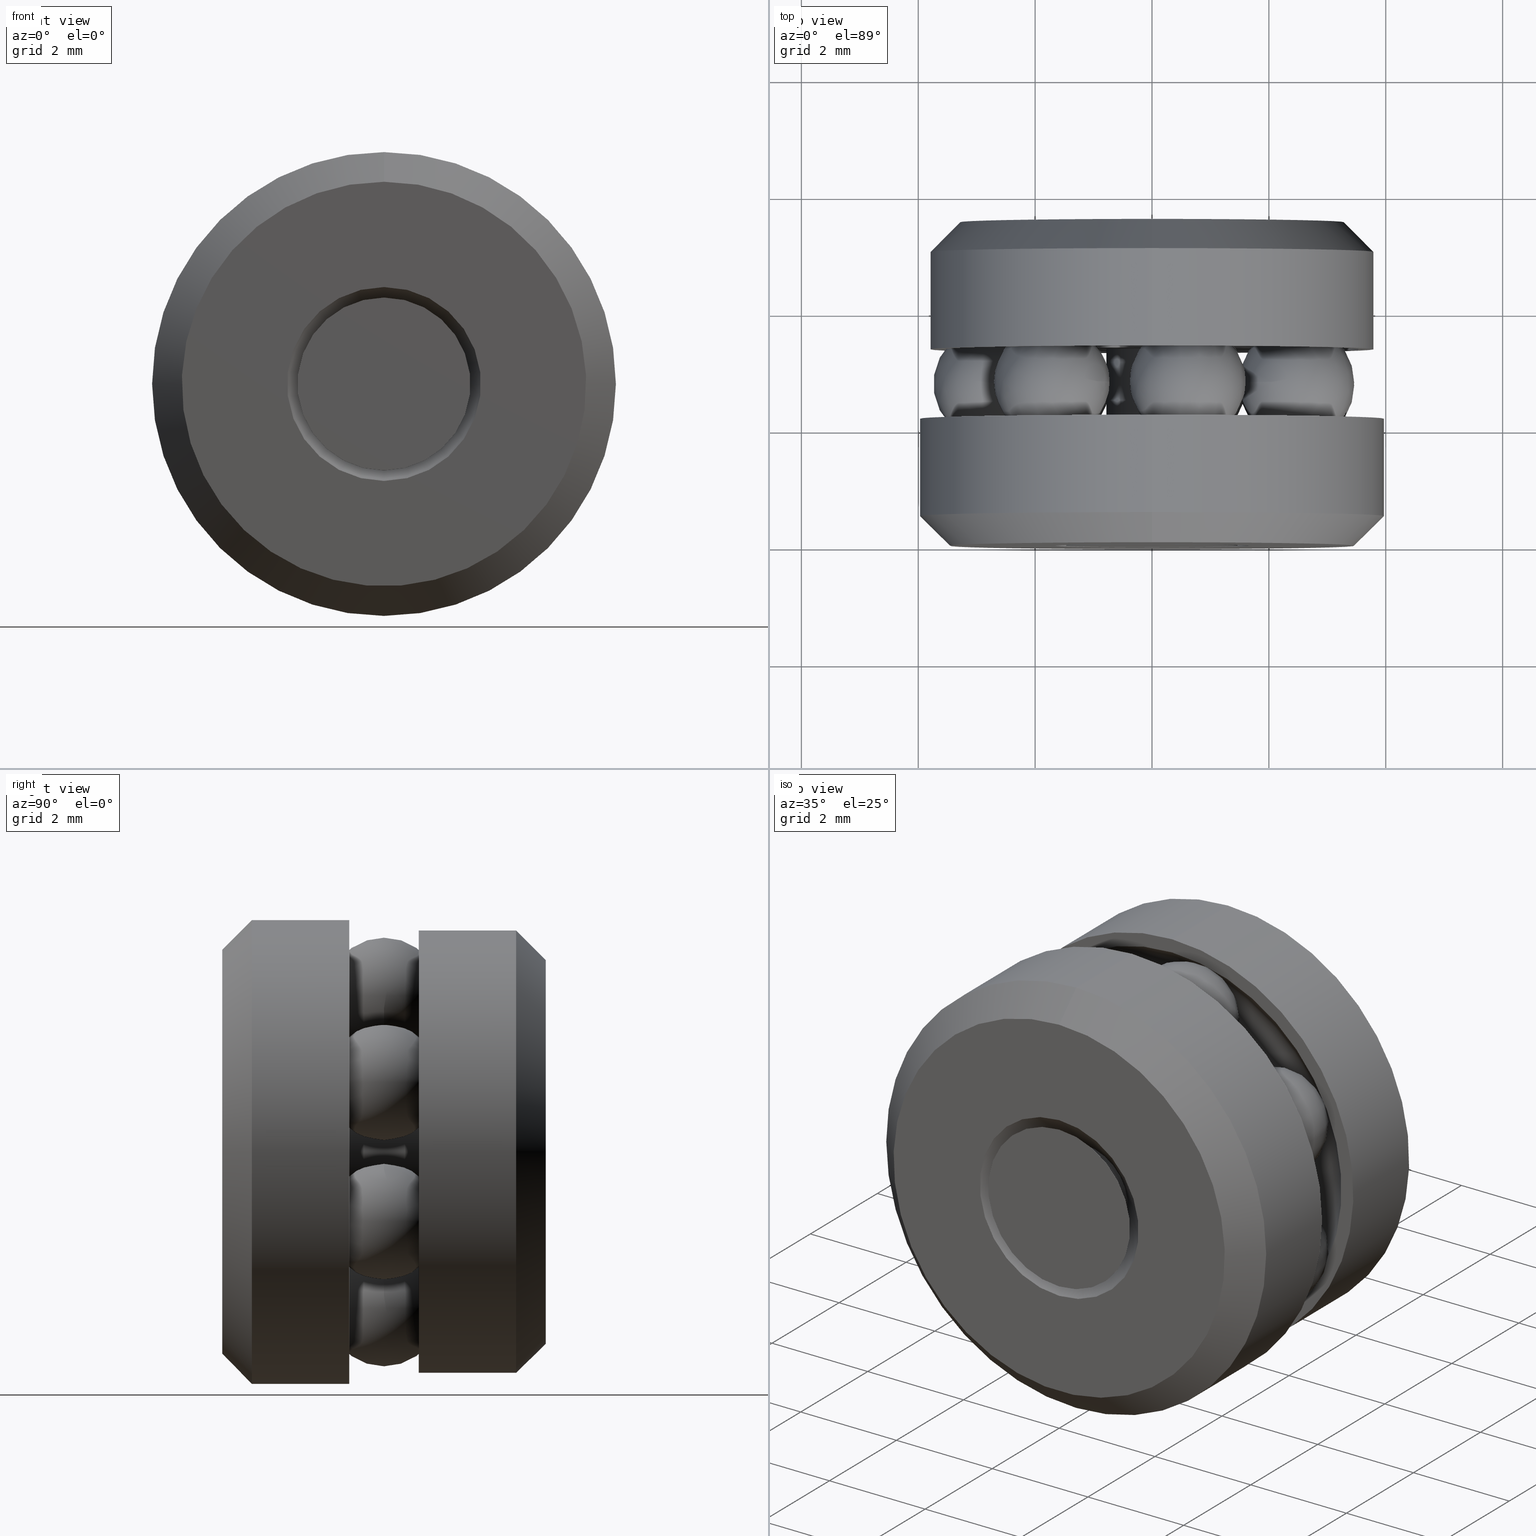
[diagram: canonical four-view strip — front | top / right | iso, engineering-drawing reading convention]
A machine part, canonical four-view strip (front | top / right | iso — engineering-drawing reading convention). The complete STEP part file that produces these views, byte-faithful:
ISO-10303-21;
HEADER;
FILE_DESCRIPTION (( 'STEP AP203' ),
    '1' );
FILE_NAME ('T-114RG_T-114RG-0005.step',
    '2016-02-04T15:34:06',
    ( '' ),
    ( '' ),
    'SwSTEP 2.0',
    'SolidWorks 2016',
    '' );
FILE_SCHEMA (( 'CONFIG_CONTROL_DESIGN' ));
ENDSEC;

DATA;
#1 = CALENDAR_DATE ( 2016, 4, 2 ) ;
#2 = CIRCLE ( 'NONE', #209, 0.07704999999999998000 ) ;
#3 = DIRECTION ( 'NONE',  ( 0.0000000000000000000, 0.0000000000000000000, 1.000000000000000000 ) ) ;
#4 = ADVANCED_FACE ( 'NONE', ( #15, #14 ), #9, .F. ) ;
#5 = CIRCLE ( 'NONE', #241, 0.1362500000000000100 ) ;
#6 = FACE_OUTER_BOUND ( 'NONE', #52, .T. ) ;
#7 = CARTESIAN_POINT ( 'NONE',  ( -0.1562500000000000000, 0.08559999999999998200, 0.0000000000000000000 ) ) ;
#8 =( CONVERSION_BASED_UNIT ( 'INCH', #518 ) LENGTH_UNIT ( ) NAMED_UNIT ( #119 ) );
#9 = TOROIDAL_SURFACE ( 'NONE', #536, 0.1082500000000000000, 0.03900000000000002100 ) ;
#10 = CARTESIAN_POINT ( 'NONE',  ( -0.07704999999999996600, 0.08560000000000002300, 0.0000000000000000000 ) ) ;
#11 = EDGE_CURVE ( 'NONE', #537, #537, #5, .T. ) ;
#12 = PERSON_AND_ORGANIZATION ( #439, #173 ) ;
#13 = DIRECTION ( 'NONE',  ( -0.0000000000000000000, 1.000000000000000000, -0.0000000000000000000 ) ) ;
#14 = FACE_OUTER_BOUND ( 'NONE', #207, .T. ) ;
#15 = FACE_OUTER_BOUND ( 'NONE', #16, .T. ) ;
#16 = EDGE_LOOP ( 'NONE', ( #55 ) ) ;
#17 = ORIENTED_EDGE ( 'NONE', *, *, #11, .F. ) ;
#18 = DIRECTION ( 'NONE',  ( 0.0000000000000000000, 0.0000000000000000000, 1.000000000000000000 ) ) ;
#19 = DIRECTION ( 'NONE',  ( -0.0000000000000000000, 1.000000000000000000, -0.0000000000000000000 ) ) ;
#20 = AXIS2_PLACEMENT_3D ( 'NONE', #98, #373, #508 ) ;
#21 = DATE_AND_TIME ( #484, #196 ) ;
#22 = FACE_OUTER_BOUND ( 'NONE', #80, .T. ) ;
#23 = DIRECTION ( 'NONE',  ( 0.0000000000000000000, 0.0000000000000000000, 1.000000000000000000 ) ) ;
#24 = CARTESIAN_POINT ( 'NONE',  ( 0.0000000000000000000, 0.0000000000000000000, 0.0000000000000000000 ) ) ;
#25 = ORIENTED_EDGE ( 'NONE', *, *, #156, .F. ) ;
#26 = CONICAL_SURFACE ( 'NONE', #421, 0.03100000000000000300, 0.7853981633974426200 ) ;
#27 = CLOSED_SHELL ( 'NONE', ( #358 ) ) ;
#28 = CARTESIAN_POINT ( 'NONE',  ( 0.02408789110077145000, 0.1089999999999999900, 0.1055359464936823100 ) ) ;
#29 = CALENDAR_DATE ( 2016, 4, 2 ) ;
#30 = CIRCLE ( 'NONE', #391, 0.1492499999999999900 ) ;
#31 = EDGE_LOOP ( 'NONE', ( #269 ) ) ;
#32 = PRODUCT_DEFINITION_SHAPE ( 'NONE', 'NONE',  #498 ) ;
#33 = ORIENTED_EDGE ( 'NONE', *, *, #284, .F. ) ;
#34 = EDGE_LOOP ( 'NONE', ( #66 ) ) ;
#35 = CC_DESIGN_APPROVAL ( #520, ( #165 ) ) ;
#36 = AXIS2_PLACEMENT_3D ( 'NONE', #159, #84, #135 ) ;
#37 = DIRECTION ( 'NONE',  ( -0.0000000000000000000, 1.000000000000000000, 0.0000000000000000000 ) ) ;
#38 = ORIENTED_EDGE ( 'NONE', *, *, #224, .F. ) ;
#39 = CIRCLE ( 'NONE', #120, 0.06532106781186515500 ) ;
#40 = PERSON_AND_ORGANIZATION ( #439, #173 ) ;
#41 = PLANE ( 'NONE',  #267 ) ;
#42 = EDGE_LOOP ( 'NONE', ( #51 ) ) ;
#43 = ADVANCED_FACE ( 'NONE', ( #456, #464 ), #26, .T. ) ;
#44 = ORIENTED_EDGE ( 'NONE', *, *, #75, .T. ) ;
#45 = EDGE_LOOP ( 'NONE', ( #145 ) ) ;
#46 = APPROVAL_ROLE ( '' ) ;
#47 = MANIFOLD_SOLID_BREP ( 'BALLS[1]', #186 ) ;
#48 = APPROVAL_PERSON_ORGANIZATION ( #301, #131, #46 ) ;
#49 = AXIS2_PLACEMENT_3D ( 'NONE', #136, #148, #426 ) ;
#50 = ADVANCED_FACE ( 'NONE', ( #242, #481 ), #334, .T. ) ;
#51 = ORIENTED_EDGE ( 'NONE', *, *, #259, .F. ) ;
#52 = EDGE_LOOP ( 'NONE', ( #130 ) ) ;
#53 = CLOSED_SHELL ( 'NONE', ( #244 ) ) ;
#54 = CARTESIAN_POINT ( 'NONE',  ( -0.07704999999999998000, 0.1323999999999999900, 0.0000000000000000000 ) ) ;
#55 = ORIENTED_EDGE ( 'NONE', *, *, #430, .T. ) ;
#56 = DIRECTION ( 'NONE',  ( 0.0000000000000000000, -1.000000000000000000, 0.0000000000000000000 ) ) ;
#57 = CARTESIAN_POINT ( 'NONE',  ( 0.0000000000000000000, 0.02725000000000001000, 0.03100000000000000300 ) ) ;
#58 = SPHERICAL_SURFACE ( 'NONE', #327, 0.03900000000000000000 ) ;
#59 = DIRECTION ( 'NONE',  ( -0.0000000000000000000, 1.000000000000000000, -0.0000000000000000000 ) ) ;
#60 = PERSON_AND_ORGANIZATION ( #439, #173 ) ;
#61 = APPLICATION_CONTEXT ( 'configuration controlled 3d designs of mechanical parts and assemblies' ) ;
#62 = EDGE_CURVE ( 'NONE', #278, #278, #303, .T. ) ;
#63 = MANIFOLD_SOLID_BREP ( 'Revolve2[3]', #231 ) ;
#64 = CIRCLE ( 'NONE', #473, 0.05824999999999974600 ) ;
#65 = ORIENTED_EDGE ( 'NONE', *, *, #344, .F. ) ;
#66 = ORIENTED_EDGE ( 'NONE', *, *, #110, .T. ) ;
#67 = DIRECTION ( 'NONE',  ( -0.0000000000000000000, 1.000000000000000000, -0.0000000000000000000 ) ) ;
#68 = VERTEX_POINT ( 'NONE', #57 ) ;
#69 = COORDINATED_UNIVERSAL_TIME_OFFSET ( 5, 0, .BEHIND. ) ;
#70 = CLOSED_SHELL ( 'NONE', ( #434, #323, #326, #511, #43 ) ) ;
#71 = ORIENTED_EDGE ( 'NONE', *, *, #400, .F. ) ;
#72 = DIRECTION ( 'NONE',  ( 0.0000000000000000000, -1.000000000000000000, 0.0000000000000000000 ) ) ;
#73 = EDGE_LOOP ( 'NONE', ( #170 ) ) ;
#74 = DIRECTION ( 'NONE',  ( 0.0000000000000000000, 0.0000000000000000000, 1.000000000000000000 ) ) ;
#75 = EDGE_CURVE ( 'NONE', #546, #546, #279, .T. ) ;
#76 = CIRCLE ( 'NONE', #429, 0.1562500000000000000 ) ;
#77 = DIRECTION ( 'NONE',  ( -0.0000000000000000000, 1.000000000000000000, -0.0000000000000000000 ) ) ;
#78 = DIRECTION ( 'NONE',  ( 0.6234898018587431400, 0.0000000000000000000, 0.7818314824680221400 ) ) ;
#79 = DIRECTION ( 'NONE',  ( -0.0000000000000000000, 1.000000000000000000, -0.0000000000000000000 ) ) ;
#80 = EDGE_LOOP ( 'NONE', ( #188 ) ) ;
#81 = CLOSED_SHELL ( 'NONE', ( #476 ) ) ;
#82 = CLOSED_SHELL ( 'NONE', ( #395 ) ) ;
#83 = CARTESIAN_POINT ( 'NONE',  ( 0.0000000000000000000, 0.02000000000000018400, 0.1562500000000000000 ) ) ;
#84 = DIRECTION ( 'NONE',  ( -0.0000000000000000000, 1.000000000000000000, -0.0000000000000000000 ) ) ;
#85 = DIRECTION ( 'NONE',  ( -0.9749279121818228400, 0.0000000000000000000, 0.2225209339563182800 ) ) ;
#86 = DIRECTION ( 'NONE',  ( 0.0000000000000000000, 0.0000000000000000000, 1.000000000000000000 ) ) ;
#87 = DIRECTION ( 'NONE',  ( 0.0000000000000000000, 0.0000000000000000000, 1.000000000000000000 ) ) ;
#88 = EDGE_LOOP ( 'NONE', ( #205 ) ) ;
#89 = CARTESIAN_POINT ( 'NONE',  ( 0.0000000000000000000, 0.0000000000000000000, 0.0000000000000000000 ) ) ;
#90 = AXIS2_PLACEMENT_3D ( 'NONE', #54, #72, #526 ) ;
#91 = EDGE_LOOP ( 'NONE', ( #105 ) ) ;
#92 = EDGE_LOOP ( 'NONE', ( #192 ) ) ;
#93 = DIRECTION ( 'NONE',  ( 0.4338837391175651700, -0.0000000000000000000, 0.9009688679024158200 ) ) ;
#94 = MANIFOLD_SOLID_BREP ( 'Revolve2[1]', #70 ) ;
#95 = DIRECTION ( 'NONE',  ( -0.0000000000000000000, 1.000000000000000000, -0.0000000000000000000 ) ) ;
#96 = FACE_BOUND ( 'NONE', #372, .T. ) ;
#97 = VERTEX_POINT ( 'NONE', #423 ) ;
#98 = CARTESIAN_POINT ( 'NONE',  ( 0.0000000000000000000, 0.1089999999999999900, 0.0000000000000000000 ) ) ;
#99 = CLOSED_SHELL ( 'NONE', ( #514, #438, #50, #4, #290, #287, #157, #550 ) ) ;
#100 = PRODUCT_RELATED_PRODUCT_CATEGORY ( 'detail', '', ( #463 ) ) ;
#101 = AXIS2_PLACEMENT_3D ( 'NONE', #504, #125, #446 ) ;
#102 = CARTESIAN_POINT ( 'NONE',  ( 0.0000000000000000000, 0.2179999999999999700, 0.1292500000000001700 ) ) ;
#103 = ORIENTED_EDGE ( 'NONE', *, *, #156, .T. ) ;
#104 = PERSON_AND_ORGANIZATION ( #439, #173 ) ;
#105 = ORIENTED_EDGE ( 'NONE', *, *, #357, .F. ) ;
#106 = ORIENTED_EDGE ( 'NONE', *, *, #62, .F. ) ;
#107 = ORIENTED_EDGE ( 'NONE', *, *, #62, .T. ) ;
#108 = ADVANCED_FACE ( 'NONE', ( #477, #6 ), #387, .F. ) ;
#109 = CC_DESIGN_PERSON_AND_ORGANIZATION_ASSIGNMENT ( #12, #414, ( #498 ) ) ;
#110 = EDGE_CURVE ( 'NONE', #189, #189, #146, .T. ) ;
#111 = DIRECTION ( 'NONE',  ( 0.0000000000000000000, 0.0000000000000000000, 1.000000000000000000 ) ) ;
#112 = EDGE_LOOP ( 'NONE', ( #158 ) ) ;
#113 = EDGE_LOOP ( 'NONE', ( #193 ) ) ;
#114 = EDGE_LOOP ( 'NONE', ( #483 ) ) ;
#115 = PLANE ( 'NONE',  #471 ) ;
#116 = APPROVAL_STATUS ( 'not_yet_approved' ) ;
#117 = FACE_OUTER_BOUND ( 'NONE', #122, .T. ) ;
#118 = CARTESIAN_POINT ( 'NONE',  ( 0.0000000000000000000, 0.08559999999999998200, 0.1562500000000000000 ) ) ;
#119 = DIMENSIONAL_EXPONENTS ( 1.000000000000000000, 0.0000000000000000000, 0.0000000000000000000, 0.0000000000000000000, 0.0000000000000000000, 0.0000000000000000000, 0.0000000000000000000 ) ;
#120 = AXIS2_PLACEMENT_3D ( 'NONE', #227, #527, #297 ) ;
#121 = DIRECTION ( 'NONE',  ( 0.0000000000000000000, 0.0000000000000000000, 1.000000000000000000 ) ) ;
#122 = EDGE_LOOP ( 'NONE', ( #33 ) ) ;
#123 = EDGE_LOOP ( 'NONE', ( #17 ) ) ;
#124 = ORIENTED_EDGE ( 'NONE', *, *, #332, .F. ) ;
#125 = DIRECTION ( 'NONE',  ( -0.4338837391175525700, 0.0000000000000000000, 0.9009688679024219200 ) ) ;
#126 = FACE_BOUND ( 'NONE', #185, .T. ) ;
#127 = FACE_BOUND ( 'NONE', #178, .T. ) ;
#128 = ORIENTED_EDGE ( 'NONE', *, *, #357, .T. ) ;
#129 = CARTESIAN_POINT ( 'NONE',  ( 0.0000000000000000000, 0.2179999999999999700, 0.0000000000000000000 ) ) ;
#130 = ORIENTED_EDGE ( 'NONE', *, *, #466, .F. ) ;
#131 = APPROVAL ( #487, 'UNSPECIFIED' ) ;
#132 = AXIS2_PLACEMENT_3D ( 'NONE', #260, #232, #111 ) ;
#133 = CARTESIAN_POINT ( 'NONE',  ( 0.0000000000000000000, 0.2180000000000000000, 0.0000000000000000000 ) ) ;
#134 = CIRCLE ( 'NONE', #154, 0.1394499999999999900 ) ;
#135 = DIRECTION ( 'NONE',  ( 0.0000000000000000000, 0.0000000000000000000, 1.000000000000000000 ) ) ;
#136 = CARTESIAN_POINT ( 'NONE',  ( 0.0000000000000000000, 0.1979999999999997600, 0.0000000000000000000 ) ) ;
#137 = CLOSED_SHELL ( 'NONE', ( #283 ) ) ;
#138 = EDGE_LOOP ( 'NONE', ( #201 ) ) ;
#139 = EDGE_LOOP ( 'NONE', ( #106 ) ) ;
#140 = CARTESIAN_POINT ( 'NONE',  ( -0.1492499999999999900, 0.1323999999999999900, 0.0000000000000000000 ) ) ;
#141 = FACE_OUTER_BOUND ( 'NONE', #73, .T. ) ;
#142 = DIRECTION ( 'NONE',  ( -0.0000000000000000000, 1.000000000000000000, -0.0000000000000000000 ) ) ;
#143 = ORIENTED_EDGE ( 'NONE', *, *, #110, .F. ) ;
#144 = AXIS2_PLACEMENT_3D ( 'NONE', #294, #187, #204 ) ;
#145 = ORIENTED_EDGE ( 'NONE', *, *, #491, .F. ) ;
#146 = CIRCLE ( 'NONE', #554, 0.03600000000000001100 ) ;
#147 = EDGE_LOOP ( 'NONE', ( #124 ) ) ;
#148 = DIRECTION ( 'NONE',  ( -0.0000000000000000000, 1.000000000000000000, -0.0000000000000000000 ) ) ;
#149 = ADVANCED_FACE ( 'NONE', ( #532, #237 ), #321, .T. ) ;
#150 = FACE_OUTER_BOUND ( 'NONE', #222, .T. ) ;
#151 = DATE_AND_TIME ( #351, #370 ) ;
#152 = ORIENTED_EDGE ( 'NONE', *, *, #466, .T. ) ;
#153 = EDGE_LOOP ( 'NONE', ( #71 ) ) ;
#154 = AXIS2_PLACEMENT_3D ( 'NONE', #364, #540, #412 ) ;
#155 = VERTEX_POINT ( 'NONE', #225 ) ;
#156 = EDGE_CURVE ( 'NONE', #155, #155, #533, .T. ) ;
#157 = ADVANCED_FACE ( 'NONE', ( #424, #214 ), #164, .T. ) ;
#158 = ORIENTED_EDGE ( 'NONE', *, *, #400, .T. ) ;
#159 = CARTESIAN_POINT ( 'NONE',  ( 0.0000000000000000000, 0.2179999999999999700, 0.0000000000000000000 ) ) ;
#160 = EDGE_LOOP ( 'NONE', ( #410 ) ) ;
#161 = EDGE_LOOP ( 'NONE', ( #25 ) ) ;
#162 = EDGE_LOOP ( 'NONE', ( #107 ) ) ;
#163 = CARTESIAN_POINT ( 'NONE',  ( 0.0000000000000000000, 0.02000000000000018400, 0.0000000000000000000 ) ) ;
#164 = CONICAL_SURFACE ( 'NONE', #499, 0.1292500000000001700, 0.7853981633974394000 ) ;
#165 = SECURITY_CLASSIFICATION ( '', '', #522 ) ;
#166 = AXIS2_PLACEMENT_3D ( 'NONE', #347, #389, #291 ) ;
#167 = FACE_BOUND ( 'NONE', #147, .T. ) ;
#168 = CLOSED_SHELL ( 'NONE', ( #252 ) ) ;
#169 = EDGE_LOOP ( 'NONE', ( #276 ) ) ;
#170 = ORIENTED_EDGE ( 'NONE', *, *, #545, .T. ) ;
#171 = DIRECTION ( 'NONE',  ( 0.0000000000000000000, 0.0000000000000000000, 1.000000000000000000 ) ) ;
#172 = DIRECTION ( 'NONE',  ( -0.0000000000000000000, 1.000000000000000000, -0.0000000000000000000 ) ) ;
#173 = ORGANIZATION ( 'UNSPECIFIED', 'UNSPECIFIED', '' ) ;
#174 = VERTEX_POINT ( 'NONE', #558 ) ;
#175 = AXIS2_PLACEMENT_3D ( 'NONE', #495, #544, #74 ) ;
#176 = EDGE_LOOP ( 'NONE', ( #190 ) ) ;
#177 = APPLICATION_PROTOCOL_DEFINITION ( 'international standard', 'config_control_design', 1994, #362 ) ;
#178 = EDGE_LOOP ( 'NONE', ( #152 ) ) ;
#179 = EDGE_LOOP ( 'NONE', ( #306 ) ) ;
#180 = EDGE_LOOP ( 'NONE', ( #450 ) ) ;
#181 = PERSON_AND_ORGANIZATION_ROLE ( 'design_supplier' ) ;
#182 = AXIS2_PLACEMENT_3D ( 'NONE', #458, #394, #121 ) ;
#183 = CONICAL_SURFACE ( 'NONE', #374, 0.06532106781186515500, 0.7853981633974427300 ) ;
#184 = DIRECTION ( 'NONE',  ( 0.0000000000000000000, -1.000000000000000000, 0.0000000000000000000 ) ) ;
#185 = EDGE_LOOP ( 'NONE', ( #208 ) ) ;
#186 = CLOSED_SHELL ( 'NONE', ( #436 ) ) ;
#187 = DIRECTION ( 'NONE',  ( -0.0000000000000000000, 1.000000000000000000, -0.0000000000000000000 ) ) ;
#188 = ORIENTED_EDGE ( 'NONE', *, *, #191, .F. ) ;
#189 = VERTEX_POINT ( 'NONE', #485 ) ;
#190 = ORIENTED_EDGE ( 'NONE', *, *, #200, .F. ) ;
#191 = EDGE_CURVE ( 'NONE', #174, #174, #64, .T. ) ;
#192 = ORIENTED_EDGE ( 'NONE', *, *, #75, .F. ) ;
#193 = ORIENTED_EDGE ( 'NONE', *, *, #304, .T. ) ;
#194 = EDGE_LOOP ( 'NONE', ( #509 ) ) ;
#195 = DATE_AND_TIME ( #212, #480 ) ;
#196 = LOCAL_TIME ( 10, 34, 6.000000000000000000, #427 ) ;
#197 = CARTESIAN_POINT ( 'NONE',  ( 0.0000000000000000000, 0.02725000000000001000, 0.0000000000000000000 ) ) ;
#198 = AXIS2_PLACEMENT_3D ( 'NONE', #133, #489, #510 ) ;
#199 = DIRECTION ( 'NONE',  ( -0.0000000000000000000, 1.000000000000000000, -0.0000000000000000000 ) ) ;
#200 = EDGE_CURVE ( 'NONE', #432, #432, #551, .T. ) ;
#201 = ORIENTED_EDGE ( 'NONE', *, *, #304, .F. ) ;
#202 = DIRECTION ( 'NONE',  ( 0.0000000000000000000, 0.0000000000000000000, 1.000000000000000000 ) ) ;
#203 = CIRCLE ( 'NONE', #479, 0.03100000000000000300 ) ;
#204 = DIRECTION ( 'NONE',  ( 0.0000000000000000000, 0.0000000000000000000, 1.000000000000000000 ) ) ;
#205 = ORIENTED_EDGE ( 'NONE', *, *, #545, .F. ) ;
#206 = EDGE_LOOP ( 'NONE', ( #38 ) ) ;
#207 = EDGE_LOOP ( 'NONE', ( #65 ) ) ;
#208 = ORIENTED_EDGE ( 'NONE', *, *, #11, .T. ) ;
#209 = AXIS2_PLACEMENT_3D ( 'NONE', #488, #461, #18 ) ;
#210 = CC_DESIGN_PERSON_AND_ORGANIZATION_ASSIGNMENT ( #415, #181, ( #281 ) ) ;
#211 = VERTEX_POINT ( 'NONE', #365 ) ;
#212 = CALENDAR_DATE ( 2016, 4, 2 ) ;
#213 = DIRECTION ( 'NONE',  ( 0.7818314824680221400, 0.0000000000000000000, -0.6234898018587431400 ) ) ;
#214 = FACE_BOUND ( 'NONE', #92, .T. ) ;
#215 = EDGE_LOOP ( 'NONE', ( #44 ) ) ;
#216 = CARTESIAN_POINT ( 'NONE',  ( 0.0000000000000000000, -1.293516365760028200E-017, 0.1362500000000000100 ) ) ;
#217 = DIRECTION ( 'NONE',  ( 1.000000000000000000, 0.0000000000000000000, 0.0000000000000000000 ) ) ;
#218 = DIRECTION ( 'NONE',  ( -0.0000000000000000000, 1.000000000000000000, -0.0000000000000000000 ) ) ;
#219 = CONICAL_SURFACE ( 'NONE', #440, 0.03600000000000003200, 0.7853981633974432800 ) ;
#220 = CARTESIAN_POINT ( 'NONE',  ( 0.0000000000000000000, 0.02932106781186547700, 0.0000000000000000000 ) ) ;
#221 = EDGE_LOOP ( 'NONE', ( #548 ) ) ;
#222 = EDGE_LOOP ( 'NONE', ( #470 ) ) ;
#223 = EDGE_LOOP ( 'NONE', ( #103 ) ) ;
#224 = EDGE_CURVE ( 'NONE', #459, #459, #288, .T. ) ;
#225 = CARTESIAN_POINT ( 'NONE',  ( 0.0000000000000000000, 0.1323999999999999900, 0.03600000000000002500 ) ) ;
#226 = VERTEX_POINT ( 'NONE', #83 ) ;
#227 = CARTESIAN_POINT ( 'NONE',  ( 0.0000000000000000000, -5.474608238652862700E-019, 0.0000000000000000000 ) ) ;
#228 = VERTEX_POINT ( 'NONE', #555 ) ;
#229 = PLANE ( 'NONE',  #182 ) ;
#230 = APPROVAL_ROLE ( '' ) ;
#231 = CLOSED_SHELL ( 'NONE', ( #251, #328, #547, #539, #108, #149, #360, #478 ) ) ;
#232 = DIRECTION ( 'NONE',  ( -0.0000000000000000000, 1.000000000000000000, -0.0000000000000000000 ) ) ;
#233 = AXIS2_PLACEMENT_3D ( 'NONE', #140, #56, #422 ) ;
#234 = DIRECTION ( 'NONE',  ( 0.0000000000000000000, 0.0000000000000000000, -1.000000000000000000 ) ) ;
#235 = CYLINDRICAL_SURFACE ( 'NONE', #399, 0.03100000000000001700 ) ;
#236 = MANIFOLD_SOLID_BREP ( 'BALLS[6]', #137 ) ;
#237 = FACE_BOUND ( 'NONE', #556, .T. ) ;
#238 =( GEOMETRIC_REPRESENTATION_CONTEXT ( 3 ) GLOBAL_UNCERTAINTY_ASSIGNED_CONTEXT ( ( #457 ) ) GLOBAL_UNIT_ASSIGNED_CONTEXT ( ( #8, #263, #418 ) ) REPRESENTATION_CONTEXT ( 'NONE', 'WORKASPACE' ) );
#239 = SPHERICAL_SURFACE ( 'NONE', #101, 0.03900000000000000000 ) ;
#240 = CARTESIAN_POINT ( 'NONE',  ( 0.0000000000000000000, 0.1323999999999999900, 0.1492499999999999900 ) ) ;
#241 = AXIS2_PLACEMENT_3D ( 'NONE', #247, #513, #3 ) ;
#242 = FACE_BOUND ( 'NONE', #223, .T. ) ;
#243 = DATE_TIME_ROLE ( 'creation_date' ) ;
#244 = ADVANCED_FACE ( 'NONE', ( ), #266, .T. ) ;
#245 = CONICAL_SURFACE ( 'NONE', #198, 0.05824999999999974600, 0.7853981633974431700 ) ;
#246 = CARTESIAN_POINT ( 'NONE',  ( 0.02408789110077002100, 0.1089999999999999900, -0.1055359464936826300 ) ) ;
#247 = CARTESIAN_POINT ( 'NONE',  ( 0.0000000000000000000, -1.293516365760028200E-017, 0.0000000000000000000 ) ) ;
#248 = AXIS2_PLACEMENT_3D ( 'NONE', #345, #376, #417 ) ;
#249 = ORIENTED_EDGE ( 'NONE', *, *, #332, .T. ) ;
#250 = DIRECTION ( 'NONE',  ( 0.0000000000000000000, 0.0000000000000000000, 1.000000000000000000 ) ) ;
#251 = ADVANCED_FACE ( 'NONE', ( #416, #117 ), #316, .T. ) ;
#252 = ADVANCED_FACE ( 'NONE', ( ), #552, .T. ) ;
#253 = LOCAL_TIME ( 10, 34, 6.000000000000000000, #69 ) ;
#254 = LOCAL_TIME ( 10, 34, 6.000000000000000000, #469 ) ;
#255 = DIRECTION ( 'NONE',  ( -0.0000000000000000000, 1.000000000000000000, -0.0000000000000000000 ) ) ;
#256 = CARTESIAN_POINT ( 'NONE',  ( 0.0000000000000000000, 0.1323999999999999900, 0.07704999999999998000 ) ) ;
#257 = CARTESIAN_POINT ( 'NONE',  ( 0.0000000000000000000, 0.2180000000000000000, 0.06532106781186519700 ) ) ;
#258 = CARTESIAN_POINT ( 'NONE',  ( 0.0000000000000000000, 0.0000000000000000000, 0.0000000000000000000 ) ) ;
#259 = EDGE_CURVE ( 'NONE', #384, #384, #30, .T. ) ;
#260 = CARTESIAN_POINT ( 'NONE',  ( 0.0000000000000000000, 0.1907500000000000000, 0.0000000000000000000 ) ) ;
#261 = DIRECTION ( 'NONE',  ( -0.0000000000000000000, 1.000000000000000000, -0.0000000000000000000 ) ) ;
#262 = FACE_OUTER_BOUND ( 'NONE', #114, .T. ) ;
#263 =( NAMED_UNIT ( * ) PLANE_ANGLE_UNIT ( ) SI_UNIT ( $, .RADIAN. ) );
#264 = DATE_TIME_ROLE ( 'classification_date' ) ;
#265 = CARTESIAN_POINT ( 'NONE',  ( 0.0000000000000000000, 0.08560000000000000900, 0.0000000000000000000 ) ) ;
#266 = SPHERICAL_SURFACE ( 'NONE', #420, 0.03900000000000000000 ) ;
#267 = AXIS2_PLACEMENT_3D ( 'NONE', #285, #534, #273 ) ;
#268 = MANIFOLD_SOLID_BREP ( 'Revolve3', #53 ) ;
#269 = ORIENTED_EDGE ( 'NONE', *, *, #344, .T. ) ;
#270 = DIRECTION ( 'NONE',  ( 0.0000000000000000000, 0.0000000000000000000, 1.000000000000000000 ) ) ;
#271 = APPROVAL_DATE_TIME ( #151, #131 ) ;
#272 = APPROVAL_PERSON_ORGANIZATION ( #60, #317, #230 ) ;
#273 = DIRECTION ( 'NONE',  ( 0.0000000000000000000, -0.0000000000000000000, -1.000000000000000000 ) ) ;
#274 = CARTESIAN_POINT ( 'NONE',  ( 0.09752987995043649300, 0.1089999999999999900, -0.04696791475947643300 ) ) ;
#275 = EDGE_LOOP ( 'NONE', ( #249 ) ) ;
#276 = ORIENTED_EDGE ( 'NONE', *, *, #512, .T. ) ;
#277 = APPROVAL_DATE_TIME ( #195, #520 ) ;
#278 = VERTEX_POINT ( 'NONE', #377 ) ;
#279 = CIRCLE ( 'NONE', #36, 0.1292500000000001700 ) ;
#280 = PERSON_AND_ORGANIZATION ( #439, #173 ) ;
#281 = PRODUCT_DEFINITION_FORMATION_WITH_SPECIFIED_SOURCE ( 'ANY', '', #463, .NOT_KNOWN. ) ;
#282 = AXIS2_PLACEMENT_3D ( 'NONE', #413, #425, #202 ) ;
#283 = ADVANCED_FACE ( 'NONE', ( ), #58, .T. ) ;
#284 = EDGE_CURVE ( 'NONE', #524, #524, #296, .T. ) ;
#285 = CARTESIAN_POINT ( 'NONE',  ( -0.05824999999999970500, 0.0000000000000000000, 0.0000000000000000000 ) ) ;
#286 = CARTESIAN_POINT ( 'NONE',  ( 0.0000000000000000000, 0.1323999999999999900, 0.0000000000000000000 ) ) ;
#287 = ADVANCED_FACE ( 'NONE', ( #455, #380 ), #379, .T. ) ;
#288 = CIRCLE ( 'NONE', #444, 0.07704999999999996600 ) ;
#289 = DIRECTION ( 'NONE',  ( 0.0000000000000000000, -1.000000000000000000, 0.0000000000000000000 ) ) ;
#290 = ADVANCED_FACE ( 'NONE', ( #500, #341 ), #409, .T. ) ;
#291 = DIRECTION ( 'NONE',  ( 0.0000000000000000000, 0.0000000000000000000, 1.000000000000000000 ) ) ;
#292 = CARTESIAN_POINT ( 'NONE',  ( 0.0000000000000000000, 0.1907500000000000000, 0.03100000000000003400 ) ) ;
#293 = CC_DESIGN_DATE_AND_TIME_ASSIGNMENT ( #21, #243, ( #498 ) ) ;
#294 = CARTESIAN_POINT ( 'NONE',  ( 0.0000000000000000000, 0.1323999999999999900, 0.0000000000000000000 ) ) ;
#295 = FACE_OUTER_BOUND ( 'NONE', #206, .T. ) ;
#296 = CIRCLE ( 'NONE', #343, 0.1562500000000000000 ) ;
#297 = DIRECTION ( 'NONE',  ( 0.0000000000000000000, 0.0000000000000000000, 1.000000000000000000 ) ) ;
#298 = CARTESIAN_POINT ( 'NONE',  ( 0.0000000000000000000, 0.1323999999999999900, 0.0000000000000000000 ) ) ;
#299 = DIRECTION ( 'NONE',  ( 0.9749279121818256200, -0.0000000000000000000, 0.2225209339563050400 ) ) ;
#300 = DIRECTION ( 'NONE',  ( 0.0000000000000000000, 0.0000000000000000000, 1.000000000000000000 ) ) ;
#301 = PERSON_AND_ORGANIZATION ( #439, #173 ) ;
#302 = FACE_OUTER_BOUND ( 'NONE', #275, .T. ) ;
#303 = CIRCLE ( 'NONE', #49, 0.1492499999999999900 ) ;
#304 = EDGE_CURVE ( 'NONE', #346, #346, #369, .T. ) ;
#305 = DIRECTION ( 'NONE',  ( 0.0000000000000000000, 0.0000000000000000000, 1.000000000000000000 ) ) ;
#306 = ORIENTED_EDGE ( 'NONE', *, *, #512, .F. ) ;
#307 = PERSON_AND_ORGANIZATION ( #439, #173 ) ;
#308 = CARTESIAN_POINT ( 'NONE',  ( 0.0000000000000000000, 0.1089999999999999900, 0.0000000000000000000 ) ) ;
#309 = DIRECTION ( 'NONE',  ( -0.0000000000000000000, 1.000000000000000000, -0.0000000000000000000 ) ) ;
#310 = VERTEX_POINT ( 'NONE', #482 ) ;
#311 = SPHERICAL_SURFACE ( 'NONE', #538, 0.03900000000000000000 ) ;
#312 = DIRECTION ( 'NONE',  ( 0.0000000000000000000, 0.0000000000000000000, 1.000000000000000000 ) ) ;
#313 = ORIENTED_EDGE ( 'NONE', *, *, #430, .F. ) ;
#314 = AXIS2_PLACEMENT_3D ( 'NONE', #352, #184, #411 ) ;
#315 = CARTESIAN_POINT ( 'NONE',  ( 0.0000000000000000000, 0.0000000000000000000, 0.05824999999999970500 ) ) ;
#316 = CYLINDRICAL_SURFACE ( 'NONE', #354, 0.1562500000000000000 ) ;
#317 = APPROVAL ( #116, 'UNSPECIFIED' ) ;
#318 = FACE_BOUND ( 'NONE', #138, .T. ) ;
#319 = PERSON_AND_ORGANIZATION_ROLE ( 'creator' ) ;
#320 = DIRECTION ( 'NONE',  ( 0.0000000000000000000, 0.0000000000000000000, 1.000000000000000000 ) ) ;
#321 = PLANE ( 'NONE',  #505 ) ;
#322 = CARTESIAN_POINT ( 'NONE',  ( 0.0000000000000000000, 0.0000000000000000000, 0.0000000000000000000 ) ) ;
#323 = ADVANCED_FACE ( 'NONE', ( #150 ), #229, .T. ) ;
#324 = VERTEX_POINT ( 'NONE', #515 ) ;
#325 = MANIFOLD_SOLID_BREP ( 'BALLS[4]', #168 ) ;
#326 = ADVANCED_FACE ( 'NONE', ( #96, #22 ), #245, .T. ) ;
#327 = AXIS2_PLACEMENT_3D ( 'NONE', #442, #213, #78 ) ;
#328 = ADVANCED_FACE ( 'NONE', ( #126, #468 ), #375, .T. ) ;
#329 = FACE_OUTER_BOUND ( 'NONE', #161, .T. ) ;
#330 =( LENGTH_UNIT ( ) NAMED_UNIT ( * ) SI_UNIT ( $, .METRE. ) );
#331 = PLANE ( 'NONE',  #175 ) ;
#332 = EDGE_CURVE ( 'NONE', #97, #97, #134, .T. ) ;
#333 = APPROVAL_ROLE ( '' ) ;
#334 = PLANE ( 'NONE',  #90 ) ;
#335 = CARTESIAN_POINT ( 'NONE',  ( 0.0000000000000000000, 0.1886789321881345600, 0.0000000000000000000 ) ) ;
#336 = DATE_AND_TIME ( #1, #253 ) ;
#337 = DIRECTION ( 'NONE',  ( -0.0000000000000000000, 1.000000000000000000, -0.0000000000000000000 ) ) ;
#338 = CARTESIAN_POINT ( 'NONE',  ( 0.0000000000000000000, 0.1886789321881345600, 0.0000000000000000000 ) ) ;
#339 = PERSON_AND_ORGANIZATION_ROLE ( 'classification_officer' ) ;
#340 = DIRECTION ( 'NONE',  ( 1.000000000000000000, 0.0000000000000000000, 0.0000000000000000000 ) ) ;
#341 = FACE_OUTER_BOUND ( 'NONE', #42, .T. ) ;
#342 = CC_DESIGN_PERSON_AND_ORGANIZATION_ASSIGNMENT ( #40, #319, ( #281 ) ) ;
#343 = AXIS2_PLACEMENT_3D ( 'NONE', #448, #255, #86 ) ;
#344 = EDGE_CURVE ( 'NONE', #228, #228, #393, .T. ) ;
#345 = CARTESIAN_POINT ( 'NONE',  ( 0.0000000000000000000, 0.0000000000000000000, 0.0000000000000000000 ) ) ;
#346 = VERTEX_POINT ( 'NONE', #257 ) ;
#347 = CARTESIAN_POINT ( 'NONE',  ( 0.0000000000000000000, 0.02000000000000018400, 0.0000000000000000000 ) ) ;
#348 = DIRECTION ( 'NONE',  ( -0.9009688679024158200, 0.0000000000000000000, 0.4338837391175651700 ) ) ;
#349 = DIRECTION ( 'NONE',  ( 0.0000000000000000000, 0.0000000000000000000, 1.000000000000000000 ) ) ;
#350 = DATE_AND_TIME ( #29, #254 ) ;
#351 = CALENDAR_DATE ( 2016, 4, 2 ) ;
#352 = CARTESIAN_POINT ( 'NONE',  ( -0.06532106781186515500, -6.741312240732783600E-018, 0.0000000000000000000 ) ) ;
#353 = MANIFOLD_SOLID_BREP ( 'BALLS[3]', #27 ) ;
#354 = AXIS2_PLACEMENT_3D ( 'NONE', #89, #309, #250 ) ;
#355 = FACE_BOUND ( 'NONE', #112, .T. ) ;
#356 = CARTESIAN_POINT ( 'NONE',  ( 0.0000000000000000000, -5.474608238652862700E-019, 0.0000000000000000000 ) ) ;
#357 = EDGE_CURVE ( 'NONE', #497, #497, #474, .T. ) ;
#358 = ADVANCED_FACE ( 'NONE', ( ), #239, .T. ) ;
#359 = TOROIDAL_SURFACE ( 'NONE', #20, 0.1082500000000000000, 0.03900000000000000700 ) ;
#360 = ADVANCED_FACE ( 'NONE', ( #302, #295 ), #359, .F. ) ;
#361 = SPHERICAL_SURFACE ( 'NONE', #549, 0.03900000000000000000 ) ;
#362 = APPLICATION_CONTEXT ( 'configuration controlled 3d designs of mechanical parts and assemblies' ) ;
#363 = AXIS2_PLACEMENT_3D ( 'NONE', #338, #79, #320 ) ;
#364 = CARTESIAN_POINT ( 'NONE',  ( 0.0000000000000000000, 0.08559999999999998200, 0.0000000000000000000 ) ) ;
#365 = CARTESIAN_POINT ( 'NONE',  ( 0.0000000000000000000, 0.1886789321881345600, 0.03600000000000003200 ) ) ;
#366 = CC_DESIGN_APPROVAL ( #317, ( #498 ) ) ;
#367 = DIRECTION ( 'NONE',  ( 0.0000000000000000000, -1.000000000000000000, 0.0000000000000000000 ) ) ;
#368 = MANIFOLD_SOLID_BREP ( 'BALLS[5]', #81 ) ;
#369 = CIRCLE ( 'NONE', #282, 0.06532106781186519700 ) ;
#370 = LOCAL_TIME ( 10, 34, 6.000000000000000000, #396 ) ;
#371 = DIRECTION ( 'NONE',  ( -0.2225209339563050400, 0.0000000000000000000, 0.9749279121818256200 ) ) ;
#372 = EDGE_LOOP ( 'NONE', ( #128 ) ) ;
#373 = DIRECTION ( 'NONE',  ( -0.0000000000000000000, 1.000000000000000000, -0.0000000000000000000 ) ) ;
#374 = AXIS2_PLACEMENT_3D ( 'NONE', #356, #367, #433 ) ;
#375 = CONICAL_SURFACE ( 'NONE', #166, 0.1562500000000000000, 0.7853981633974431700 ) ;
#376 = DIRECTION ( 'NONE',  ( -0.0000000000000000000, 1.000000000000000000, -0.0000000000000000000 ) ) ;
#377 = CARTESIAN_POINT ( 'NONE',  ( 0.0000000000000000000, 0.1979999999999997600, 0.1492499999999999900 ) ) ;
#378 = DIRECTION ( 'NONE',  ( -0.0000000000000000000, 1.000000000000000000, -0.0000000000000000000 ) ) ;
#379 = CYLINDRICAL_SURFACE ( 'NONE', #248, 0.1492499999999999900 ) ;
#380 = FACE_OUTER_BOUND ( 'NONE', #139, .T. ) ;
#381 = DIRECTION ( 'NONE',  ( 0.0000000000000000000, 0.0000000000000000000, 1.000000000000000000 ) ) ;
#382 = DIRECTION ( 'NONE',  ( 0.0000000000000000000, 0.0000000000000000000, 1.000000000000000000 ) ) ;
#383 = DIRECTION ( 'NONE',  ( 0.0000000000000000000, 0.0000000000000000000, 1.000000000000000000 ) ) ;
#384 = VERTEX_POINT ( 'NONE', #240 ) ;
#385 = COORDINATED_UNIVERSAL_TIME_OFFSET ( 5, 0, .BEHIND. ) ;
#386 = DIRECTION ( 'NONE',  ( 0.0000000000000000000, 0.0000000000000000000, 1.000000000000000000 ) ) ;
#387 = CYLINDRICAL_SURFACE ( 'NONE', #543, 0.03600000000000001100 ) ;
#388 = DIRECTION ( 'NONE',  ( 0.0000000000000000000, 0.0000000000000000000, 1.000000000000000000 ) ) ;
#389 = DIRECTION ( 'NONE',  ( -0.0000000000000000000, 1.000000000000000000, -0.0000000000000000000 ) ) ;
#390 = CC_DESIGN_DATE_AND_TIME_ASSIGNMENT ( #336, #264, ( #165 ) ) ;
#391 = AXIS2_PLACEMENT_3D ( 'NONE', #298, #261, #386 ) ;
#392 = CIRCLE ( 'NONE', #363, 0.03600000000000003200 ) ;
#393 = CIRCLE ( 'NONE', #144, 0.1394500000000000200 ) ;
#394 = DIRECTION ( 'NONE',  ( -0.0000000000000000000, 1.000000000000000000, 0.0000000000000000000 ) ) ;
#395 = ADVANCED_FACE ( 'NONE', ( ), #361, .T. ) ;
#396 = COORDINATED_UNIVERSAL_TIME_OFFSET ( 5, 0, .BEHIND. ) ;
#397 = DIRECTION ( 'NONE',  ( 0.0000000000000000000, 0.0000000000000000000, -1.000000000000000000 ) ) ;
#398 = APPROVAL_DATE_TIME ( #350, #317 ) ;
#399 = AXIS2_PLACEMENT_3D ( 'NONE', #322, #218, #388 ) ;
#400 = EDGE_CURVE ( 'NONE', #324, #324, #39, .T. ) ;
#401 = MECHANICAL_CONTEXT ( 'NONE', #362, 'mechanical' ) ;
#402 = DIRECTION ( 'NONE',  ( 0.0000000000000000000, 0.0000000000000000000, 1.000000000000000000 ) ) ;
#403 = CARTESIAN_POINT ( 'NONE',  ( 0.0000000000000000000, 0.0000000000000000000, 0.0000000000000000000 ) ) ;
#404 = VERTEX_POINT ( 'NONE', #256 ) ;
#405 = APPROVAL_PERSON_ORGANIZATION ( #104, #520, #333 ) ;
#406 = DIRECTION ( 'NONE',  ( 0.0000000000000000000, -1.000000000000000000, 0.0000000000000000000 ) ) ;
#407 = FACE_OUTER_BOUND ( 'NONE', #153, .T. ) ;
#408 = APPROVAL_STATUS ( 'not_yet_approved' ) ;
#409 = PLANE ( 'NONE',  #233 ) ;
#410 = ORIENTED_EDGE ( 'NONE', *, *, #259, .T. ) ;
#411 = DIRECTION ( 'NONE',  ( 0.0000000000000000000, -0.0000000000000000000, -1.000000000000000000 ) ) ;
#412 = DIRECTION ( 'NONE',  ( 0.0000000000000000000, 0.0000000000000000000, 1.000000000000000000 ) ) ;
#413 = CARTESIAN_POINT ( 'NONE',  ( 0.0000000000000000000, 0.2180000000000000000, 0.0000000000000000000 ) ) ;
#414 = PERSON_AND_ORGANIZATION_ROLE ( 'creator' ) ;
#415 = PERSON_AND_ORGANIZATION ( #439, #173 ) ;
#416 = FACE_OUTER_BOUND ( 'NONE', #169, .T. ) ;
#417 = DIRECTION ( 'NONE',  ( 0.0000000000000000000, 0.0000000000000000000, 1.000000000000000000 ) ) ;
#418 =( NAMED_UNIT ( * ) SI_UNIT ( $, .STERADIAN. ) SOLID_ANGLE_UNIT ( ) );
#419 = CC_DESIGN_PERSON_AND_ORGANIZATION_ASSIGNMENT ( #280, #451, ( #463 ) ) ;
#420 = AXIS2_PLACEMENT_3D ( 'NONE', #530, #397, #340 ) ;
#421 = AXIS2_PLACEMENT_3D ( 'NONE', #447, #289, #234 ) ;
#422 = DIRECTION ( 'NONE',  ( 0.0000000000000000000, -0.0000000000000000000, -1.000000000000000000 ) ) ;
#423 = CARTESIAN_POINT ( 'NONE',  ( 0.0000000000000000000, 0.08559999999999998200, 0.1394499999999999900 ) ) ;
#424 = FACE_OUTER_BOUND ( 'NONE', #162, .T. ) ;
#425 = DIRECTION ( 'NONE',  ( -0.0000000000000000000, 1.000000000000000000, -0.0000000000000000000 ) ) ;
#426 = DIRECTION ( 'NONE',  ( 0.0000000000000000000, 0.0000000000000000000, 1.000000000000000000 ) ) ;
#427 = COORDINATED_UNIVERSAL_TIME_OFFSET ( 5, 0, .BEHIND. ) ;
#428 = DESIGN_CONTEXT ( 'detailed design', #61, 'design' ) ;
#429 = AXIS2_PLACEMENT_3D ( 'NONE', #163, #77, #467 ) ;
#430 = EDGE_CURVE ( 'NONE', #404, #404, #2, .T. ) ;
#431 = FACE_OUTER_BOUND ( 'NONE', #215, .T. ) ;
#432 = VERTEX_POINT ( 'NONE', #315 ) ;
#433 = DIRECTION ( 'NONE',  ( 0.0000000000000000000, 0.0000000000000000000, -1.000000000000000000 ) ) ;
#434 = ADVANCED_FACE ( 'NONE', ( #507 ), #41, .T. ) ;
#435 = AXIS2_PLACEMENT_3D ( 'NONE', #274, #93, #348 ) ;
#436 = ADVANCED_FACE ( 'NONE', ( ), #311, .T. ) ;
#437 = DIRECTION ( 'NONE',  ( -0.0000000000000000000, 1.000000000000000000, -0.0000000000000000000 ) ) ;
#438 = ADVANCED_FACE ( 'NONE', ( #141, #329 ), #454, .F. ) ;
#439 = PERSON ( 'UNSPECIFIED', 'UNSPECIFIED', 'UNSPECIFIED', ('UNSPECIFIED'), ('UNSPECIFIED'), ('UNSPECIFIED') ) ;
#440 = AXIS2_PLACEMENT_3D ( 'NONE', #335, #13, #305 ) ;
#441 = MANIFOLD_SOLID_BREP ( 'BALLS[2]', #82 ) ;
#442 = CARTESIAN_POINT ( 'NONE',  ( -0.06749277105120894700, 0.1089999999999999900, -0.08463325797716339500 ) ) ;
#443 = CC_DESIGN_APPROVAL ( #131, ( #281 ) ) ;
#444 = AXIS2_PLACEMENT_3D ( 'NONE', #265, #437, #383 ) ;
#445 = DIRECTION ( 'NONE',  ( -0.2225209339563182800, 0.0000000000000000000, -0.9749279121818228400 ) ) ;
#446 = DIRECTION ( 'NONE',  ( -0.9009688679024219200, 0.0000000000000000000, -0.4338837391175525700 ) ) ;
#447 = CARTESIAN_POINT ( 'NONE',  ( 0.0000000000000000000, 0.02725000000000001000, 0.0000000000000000000 ) ) ;
#448 = CARTESIAN_POINT ( 'NONE',  ( 0.0000000000000000000, 0.08559999999999998200, 0.0000000000000000000 ) ) ;
#449 = DIRECTION ( 'NONE',  ( 0.0000000000000000000, 0.0000000000000000000, 1.000000000000000000 ) ) ;
#450 = ORIENTED_EDGE ( 'NONE', *, *, #491, .T. ) ;
#451 = PERSON_AND_ORGANIZATION_ROLE ( 'design_owner' ) ;
#452 = DIRECTION ( 'NONE',  ( 0.0000000000000000000, 0.0000000000000000000, -1.000000000000000000 ) ) ;
#453 = AXIS2_PLACEMENT_3D ( 'NONE', #403, #270, #217 ) ;
#454 = CYLINDRICAL_SURFACE ( 'NONE', #517, 0.03600000000000003200 ) ;
#455 = FACE_OUTER_BOUND ( 'NONE', #160, .T. ) ;
#456 = FACE_OUTER_BOUND ( 'NONE', #194, .T. ) ;
#457 = UNCERTAINTY_MEASURE_WITH_UNIT (LENGTH_MEASURE( 1.000000000000000100E-005 ), #8, 'distance_accuracy_value', 'NONE');
#458 = CARTESIAN_POINT ( 'NONE',  ( 0.0000000000000000000, 0.2180000000000000300, 0.0000000000000000000 ) ) ;
#459 = VERTEX_POINT ( 'NONE', #531 ) ;
#460 = CARTESIAN_POINT ( 'NONE',  ( 0.0000000000000000000, 0.0000000000000000000, 0.0000000000000000000 ) ) ;
#461 = DIRECTION ( 'NONE',  ( -0.0000000000000000000, 1.000000000000000000, -0.0000000000000000000 ) ) ;
#462 = AXIS2_PLACEMENT_3D ( 'NONE', #24, #199, #312 ) ;
#463 = PRODUCT ( 'T-114RG_T-114RG-0005', 'T-114RG_T-114RG-0005', '', ( #401 ) ) ;
#464 = FACE_BOUND ( 'NONE', #45, .T. ) ;
#465 = DIRECTION ( 'NONE',  ( -0.7818314824680309100, 0.0000000000000000000, -0.6234898018587321500 ) ) ;
#466 = EDGE_CURVE ( 'NONE', #310, #310, #492, .T. ) ;
#467 = DIRECTION ( 'NONE',  ( 0.0000000000000000000, 0.0000000000000000000, 1.000000000000000000 ) ) ;
#468 = FACE_OUTER_BOUND ( 'NONE', #179, .T. ) ;
#469 = COORDINATED_UNIVERSAL_TIME_OFFSET ( 5, 0, .BEHIND. ) ;
#470 = ORIENTED_EDGE ( 'NONE', *, *, #191, .T. ) ;
#471 = AXIS2_PLACEMENT_3D ( 'NONE', #7, #37, #382 ) ;
#472 = APPLICATION_PROTOCOL_DEFINITION ( 'international standard', 'config_control_design', 1994, #61 ) ;
#473 = AXIS2_PLACEMENT_3D ( 'NONE', #535, #378, #87 ) ;
#474 = CIRCLE ( 'NONE', #132, 0.03100000000000003400 ) ;
#475 = FACE_OUTER_BOUND ( 'NONE', #113, .T. ) ;
#476 = ADVANCED_FACE ( 'NONE', ( ), #528, .T. ) ;
#477 = FACE_OUTER_BOUND ( 'NONE', #34, .T. ) ;
#478 = ADVANCED_FACE ( 'NONE', ( #262, #167 ), #115, .T. ) ;
#479 = AXIS2_PLACEMENT_3D ( 'NONE', #197, #95, #300 ) ;
#480 = LOCAL_TIME ( 10, 34, 6.000000000000000000, #385 ) ;
#481 = FACE_OUTER_BOUND ( 'NONE', #494, .T. ) ;
#482 = CARTESIAN_POINT ( 'NONE',  ( 0.0000000000000000000, 0.02932106781186547700, 0.03600000000000000400 ) ) ;
#483 = ORIENTED_EDGE ( 'NONE', *, *, #284, .T. ) ;
#484 = CALENDAR_DATE ( 2016, 4, 2 ) ;
#485 = CARTESIAN_POINT ( 'NONE',  ( 0.0000000000000000000, 0.08560000000000003700, 0.03600000000000001100 ) ) ;
#486 = PLANE ( 'NONE',  #314 ) ;
#487 = APPROVAL_STATUS ( 'not_yet_approved' ) ;
#488 = CARTESIAN_POINT ( 'NONE',  ( 0.0000000000000000000, 0.1323999999999999900, 0.0000000000000000000 ) ) ;
#489 = DIRECTION ( 'NONE',  ( -0.0000000000000000000, 1.000000000000000000, -0.0000000000000000000 ) ) ;
#490 = FACE_BOUND ( 'NONE', #88, .T. ) ;
#491 = EDGE_CURVE ( 'NONE', #68, #68, #203, .T. ) ;
#492 = CIRCLE ( 'NONE', #525, 0.03600000000000000400 ) ;
#493 = CARTESIAN_POINT ( 'NONE',  ( -0.06749277105120775300, 0.1089999999999999900, 0.08463325797716436700 ) ) ;
#494 = EDGE_LOOP ( 'NONE', ( #313 ) ) ;
#495 = CARTESIAN_POINT ( 'NONE',  ( -0.06532106781186519700, 0.2179999999999999700, 0.0000000000000000000 ) ) ;
#496 = AXIS2_PLACEMENT_3D ( 'NONE', #246, #299, #371 ) ;
#497 = VERTEX_POINT ( 'NONE', #292 ) ;
#498 = PRODUCT_DEFINITION ( 'UNKNOWN', '', #281, #428 ) ;
#499 = AXIS2_PLACEMENT_3D ( 'NONE', #129, #406, #452 ) ;
#500 = FACE_BOUND ( 'NONE', #31, .T. ) ;
#501 = DIRECTION ( 'NONE',  ( 0.0000000000000000000, 0.0000000000000000000, 1.000000000000000000 ) ) ;
#502 = SHAPE_DEFINITION_REPRESENTATION ( #32, #541 ) ;
#503 = FACE_OUTER_BOUND ( 'NONE', #180, .T. ) ;
#504 = CARTESIAN_POINT ( 'NONE',  ( 0.09752987995043715900, 0.1089999999999999900, 0.04696791475947507300 ) ) ;
#505 = AXIS2_PLACEMENT_3D ( 'NONE', #10, #519, #349 ) ;
#506 = FACE_OUTER_BOUND ( 'NONE', #123, .T. ) ;
#507 = FACE_OUTER_BOUND ( 'NONE', #176, .T. ) ;
#508 = DIRECTION ( 'NONE',  ( 0.0000000000000000000, 0.0000000000000000000, 1.000000000000000000 ) ) ;
#509 = ORIENTED_EDGE ( 'NONE', *, *, #200, .T. ) ;
#510 = DIRECTION ( 'NONE',  ( 0.0000000000000000000, 0.0000000000000000000, 1.000000000000000000 ) ) ;
#511 = ADVANCED_FACE ( 'NONE', ( #503, #516 ), #235, .T. ) ;
#512 = EDGE_CURVE ( 'NONE', #226, #226, #76, .T. ) ;
#513 = DIRECTION ( 'NONE',  ( -0.0000000000000000000, 1.000000000000000000, -0.0000000000000000000 ) ) ;
#514 = ADVANCED_FACE ( 'NONE', ( #475, #490 ), #219, .F. ) ;
#515 = CARTESIAN_POINT ( 'NONE',  ( 0.0000000000000000000, -5.474608238652862700E-019, 0.06532106781186515500 ) ) ;
#516 = FACE_OUTER_BOUND ( 'NONE', #91, .T. ) ;
#517 = AXIS2_PLACEMENT_3D ( 'NONE', #258, #67, #449 ) ;
#518 = LENGTH_MEASURE_WITH_UNIT ( LENGTH_MEASURE( 0.02539999999999999900 ), #330 );
#519 = DIRECTION ( 'NONE',  ( -0.0000000000000000000, 1.000000000000000000, 0.0000000000000000000 ) ) ;
#520 = APPROVAL ( #408, 'UNSPECIFIED' ) ;
#521 = AXIS2_PLACEMENT_3D ( 'NONE', #286, #337, #23 ) ;
#522 = SECURITY_CLASSIFICATION_LEVEL ( 'unclassified' ) ;
#523 = DIRECTION ( 'NONE',  ( 0.6234898018587321500, 0.0000000000000000000, -0.7818314824680309100 ) ) ;
#524 = VERTEX_POINT ( 'NONE', #118 ) ;
#525 = AXIS2_PLACEMENT_3D ( 'NONE', #220, #142, #171 ) ;
#526 = DIRECTION ( 'NONE',  ( 0.0000000000000000000, -0.0000000000000000000, -1.000000000000000000 ) ) ;
#527 = DIRECTION ( 'NONE',  ( -0.0000000000000000000, 1.000000000000000000, -0.0000000000000000000 ) ) ;
#528 = SPHERICAL_SURFACE ( 'NONE', #496, 0.03900000000000000000 ) ;
#529 = MANIFOLD_SOLID_BREP ( 'Revolve2[2]', #99 ) ;
#530 = CARTESIAN_POINT ( 'NONE',  ( -0.1082500000000000000, 0.1089999999999999900, 0.0000000000000000000 ) ) ;
#531 = CARTESIAN_POINT ( 'NONE',  ( 0.0000000000000000000, 0.08560000000000000900, 0.07704999999999996600 ) ) ;
#532 = FACE_OUTER_BOUND ( 'NONE', #221, .T. ) ;
#533 = CIRCLE ( 'NONE', #521, 0.03600000000000002500 ) ;
#534 = DIRECTION ( 'NONE',  ( 0.0000000000000000000, -1.000000000000000000, 0.0000000000000000000 ) ) ;
#535 = CARTESIAN_POINT ( 'NONE',  ( 0.0000000000000000000, 0.2180000000000000000, 0.0000000000000000000 ) ) ;
#536 = AXIS2_PLACEMENT_3D ( 'NONE', #308, #19, #381 ) ;
#537 = VERTEX_POINT ( 'NONE', #216 ) ;
#538 = AXIS2_PLACEMENT_3D ( 'NONE', #493, #465, #523 ) ;
#539 = ADVANCED_FACE ( 'NONE', ( #127, #407 ), #183, .F. ) ;
#540 = DIRECTION ( 'NONE',  ( -0.0000000000000000000, 1.000000000000000000, -0.0000000000000000000 ) ) ;
#541 = ADVANCED_BREP_SHAPE_REPRESENTATION ( 'T-114RG_T-114RG-0005', ( #94, #529, #63, #268, #47, #441, #353, #325, #368, #236, #453 ), #238 ) ;
#542 = CC_DESIGN_SECURITY_CLASSIFICATION ( #165, ( #281 ) ) ;
#543 = AXIS2_PLACEMENT_3D ( 'NONE', #460, #172, #501 ) ;
#544 = DIRECTION ( 'NONE',  ( -0.0000000000000000000, 1.000000000000000000, 0.0000000000000000000 ) ) ;
#545 = EDGE_CURVE ( 'NONE', #211, #211, #392, .T. ) ;
#546 = VERTEX_POINT ( 'NONE', #102 ) ;
#547 = ADVANCED_FACE ( 'NONE', ( #355, #506 ), #486, .T. ) ;
#548 = ORIENTED_EDGE ( 'NONE', *, *, #224, .T. ) ;
#549 = AXIS2_PLACEMENT_3D ( 'NONE', #28, #85, #445 ) ;
#550 = ADVANCED_FACE ( 'NONE', ( #431, #318 ), #331, .T. ) ;
#551 = CIRCLE ( 'NONE', #462, 0.05824999999999970500 ) ;
#552 = SPHERICAL_SURFACE ( 'NONE', #435, 0.03900000000000000000 ) ;
#553 = CC_DESIGN_PERSON_AND_ORGANIZATION_ASSIGNMENT ( #307, #339, ( #165 ) ) ;
#554 = AXIS2_PLACEMENT_3D ( 'NONE', #557, #59, #402 ) ;
#555 = CARTESIAN_POINT ( 'NONE',  ( 0.0000000000000000000, 0.1323999999999999900, 0.1394500000000000200 ) ) ;
#556 = EDGE_LOOP ( 'NONE', ( #143 ) ) ;
#557 = CARTESIAN_POINT ( 'NONE',  ( 0.0000000000000000000, 0.08560000000000003700, 0.0000000000000000000 ) ) ;
#558 = CARTESIAN_POINT ( 'NONE',  ( 0.0000000000000000000, 0.2180000000000000000, 0.05824999999999974600 ) ) ;
ENDSEC;
END-ISO-10303-21;
